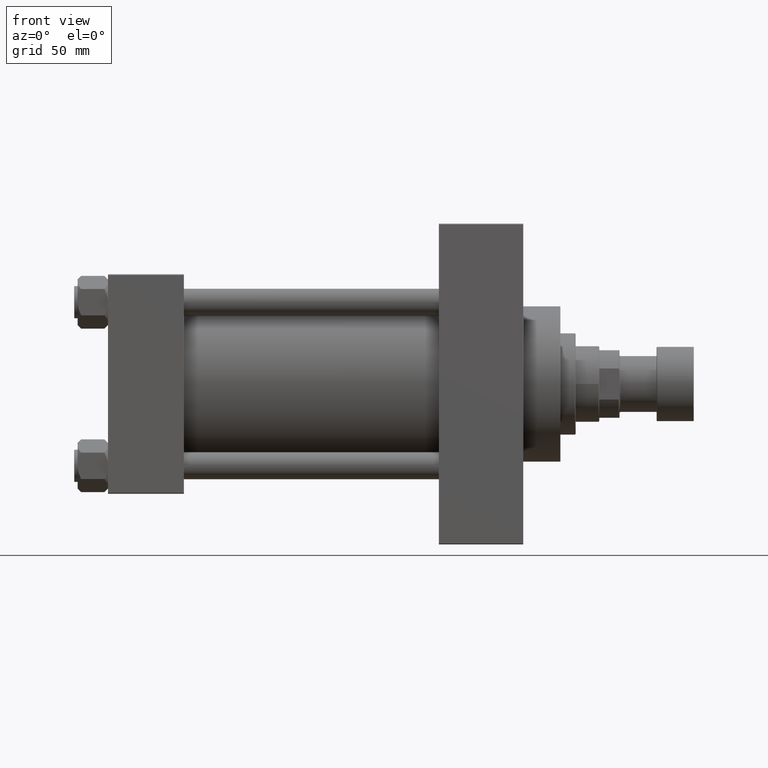
[diagram: clean part render]
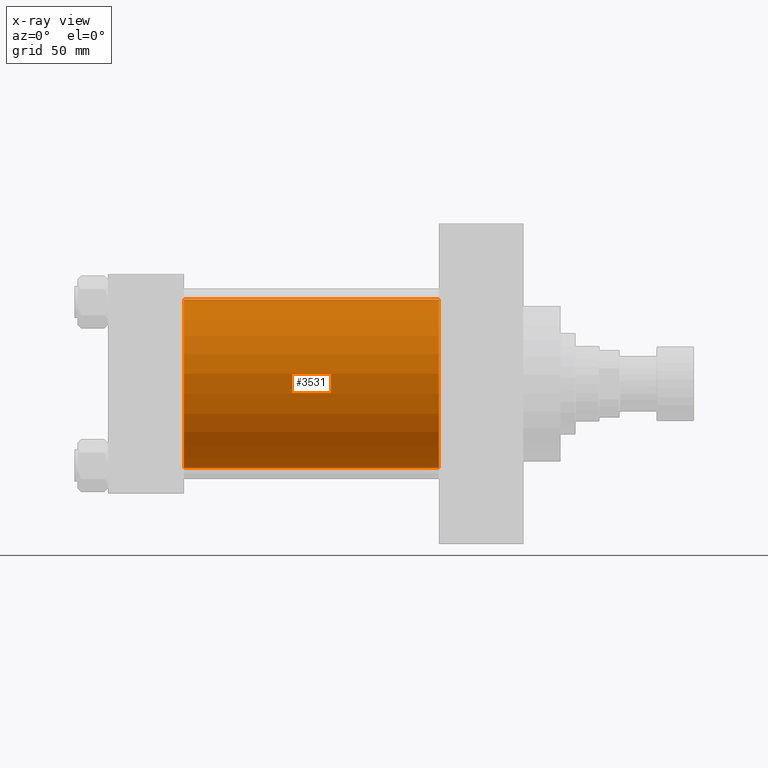
[diagram: x-ray — body ghosted, one internal face saturated and labeled with its STEP entity id]
A machine part, front view, then the same camera in x-ray: the body is ghosted and one INTERNAL B-rep face — a face not visible from any outside direction — is saturated and labeled: STEP entity #3531.
In plain terms, the highlighted cylindrical surface (partial cylindrical patch) has radius 50 mm, axis along (-1, -0, -0).
Its self-contained STEP definition (entity closure, byte-faithful):
#582 = DIRECTION ( 'NONE',  ( -1.000000000000000000, -0.000000000000000000, -0.000000000000000000 ) ) ;
#3531 = ADVANCED_FACE ( 'NONE', ( #29220 ), #18983, .F. ) ;
#5719 = CARTESIAN_POINT ( 'NONE',  ( 196.0000000000000000, 3.521148781771555838E-15, -50.00000000000000000 ) ) ;
#10586 = ORIENTED_EDGE ( 'NONE', *, *, #13747, .T. ) ;
#10766 = AXIS2_PLACEMENT_3D ( 'NONE', #25792, #44053, #22392 ) ;
#11123 = ORIENTED_EDGE ( 'NONE', *, *, #25905, .F. ) ;
#11263 = VECTOR ( 'NONE', #17334, 1000.000000000000000 ) ;
#11381 = EDGE_LOOP ( 'NONE', ( #43260, #10586, #23455, #11123 ) ) ;
#11917 = EDGE_CURVE ( 'NONE', #34377, #30170, #16378, .T. ) ;
#13747 = EDGE_CURVE ( 'NONE', #30170, #20097, #14959, .T. ) ;
#14959 = LINE ( 'NONE', #15669, #40501 ) ;
#14983 = AXIS2_PLACEMENT_3D ( 'NONE', #26457, #40819, #19404 ) ;
#15669 = CARTESIAN_POINT ( 'NONE',  ( 196.0000000000000000, 3.521148781771555838E-15, -50.00000000000000000 ) ) ;
#16378 = CIRCLE ( 'NONE', #31917, 50.00000000000000000 ) ;
#17334 = DIRECTION ( 'NONE',  ( -1.000000000000000000, -0.000000000000000000, -0.000000000000000000 ) ) ;
#18983 = CYLINDRICAL_SURFACE ( 'NONE', #10766, 50.00000000000000000 ) ;
#19135 = CARTESIAN_POINT ( 'NONE',  ( 196.0000000000000000, -2.602085213965210642E-15, 50.00000000000000000 ) ) ;
#19404 = DIRECTION ( 'NONE',  ( 0.000000000000000000, 0.000000000000000000, -1.000000000000000000 ) ) ;
#20097 = VERTEX_POINT ( 'NONE', #43643 ) ;
#20984 = CARTESIAN_POINT ( 'NONE',  ( 196.0000000000000000, -2.602085213965210642E-15, 50.00000000000000000 ) ) ;
#22392 = DIRECTION ( 'NONE',  ( 0.000000000000000000, 0.000000000000000000, 1.000000000000000000 ) ) ;
#23455 = ORIENTED_EDGE ( 'NONE', *, *, #36085, .F. ) ;
#25792 = CARTESIAN_POINT ( 'NONE',  ( 196.0000000000000000, -2.602085213965210642E-15, 0.000000000000000000 ) ) ;
#25905 = EDGE_CURVE ( 'NONE', #34377, #27890, #35801, .T. ) ;
#26457 = CARTESIAN_POINT ( 'NONE',  ( 45.00000000000000000, -2.602085213965210642E-15, 0.000000000000000000 ) ) ;
#27890 = VERTEX_POINT ( 'NONE', #44402 ) ;
#29220 = FACE_OUTER_BOUND ( 'NONE', #11381, .T. ) ;
#29562 = DIRECTION ( 'NONE',  ( 1.000000000000000000, 0.000000000000000000, 0.000000000000000000 ) ) ;
#30170 = VERTEX_POINT ( 'NONE', #5719 ) ;
#31917 = AXIS2_PLACEMENT_3D ( 'NONE', #43685, #29562, #40503 ) ;
#34377 = VERTEX_POINT ( 'NONE', #19135 ) ;
#35801 = LINE ( 'NONE', #20984, #11263 ) ;
#36085 = EDGE_CURVE ( 'NONE', #27890, #20097, #39828, .T. ) ;
#39828 = CIRCLE ( 'NONE', #14983, 50.00000000000000000 ) ;
#40501 = VECTOR ( 'NONE', #582, 1000.000000000000000 ) ;
#40503 = DIRECTION ( 'NONE',  ( 0.000000000000000000, 0.000000000000000000, -1.000000000000000000 ) ) ;
#40819 = DIRECTION ( 'NONE',  ( 1.000000000000000000, 0.000000000000000000, 0.000000000000000000 ) ) ;
#43260 = ORIENTED_EDGE ( 'NONE', *, *, #11917, .T. ) ;
#43643 = CARTESIAN_POINT ( 'NONE',  ( 45.00000000000000000, 3.521148781771555838E-15, -50.00000000000000000 ) ) ;
#43685 = CARTESIAN_POINT ( 'NONE',  ( 196.0000000000000000, -2.602085213965210642E-15, 0.000000000000000000 ) ) ;
#44053 = DIRECTION ( 'NONE',  ( -1.000000000000000000, -0.000000000000000000, -0.000000000000000000 ) ) ;
#44402 = CARTESIAN_POINT ( 'NONE',  ( 45.00000000000000000, -2.602085213965210642E-15, 50.00000000000000000 ) ) ;